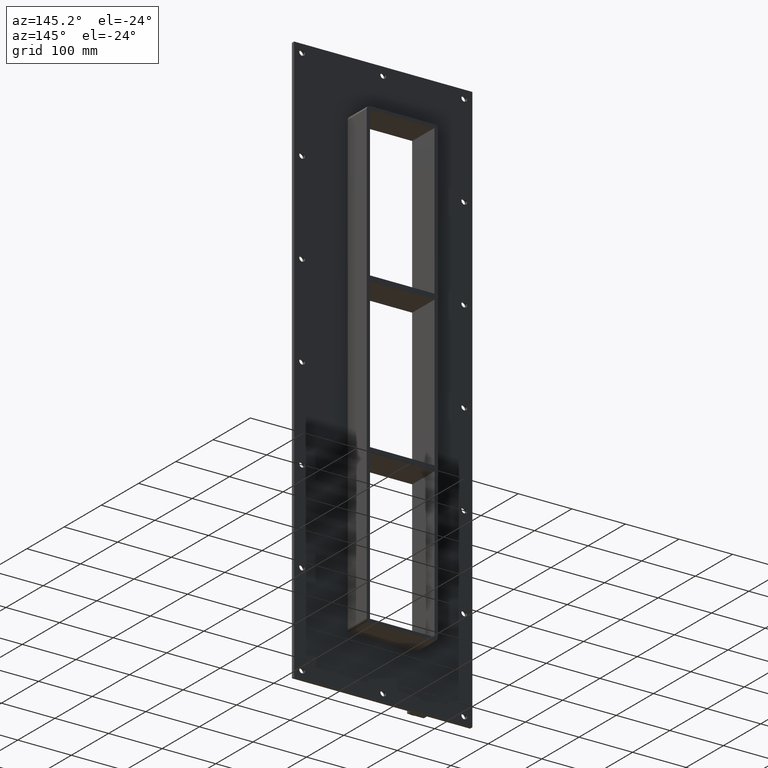
[diagram: clean part render]
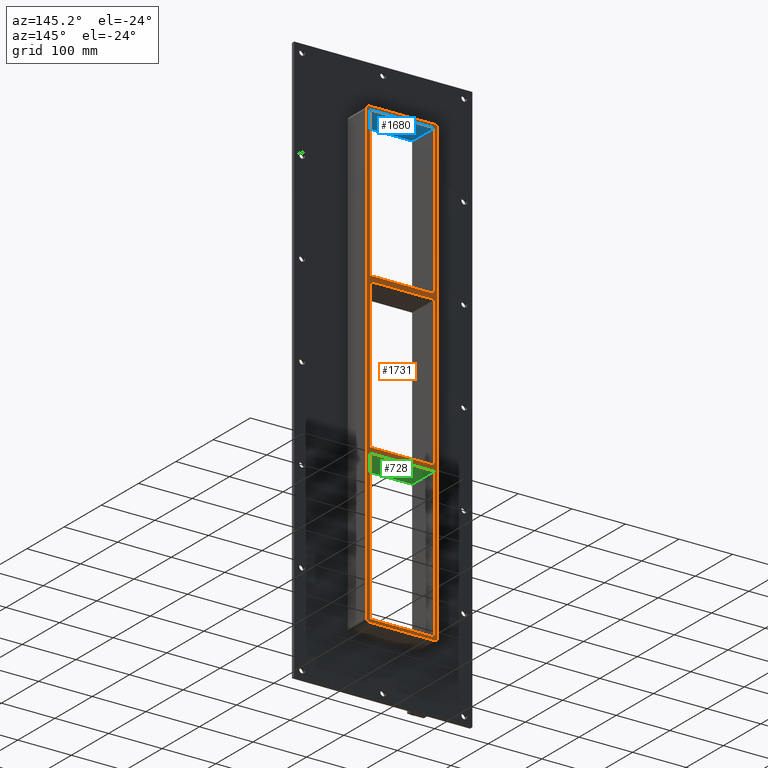
[diagram: same view with three faces highlighted in distinct colors, each labeled with its STEP entity id]
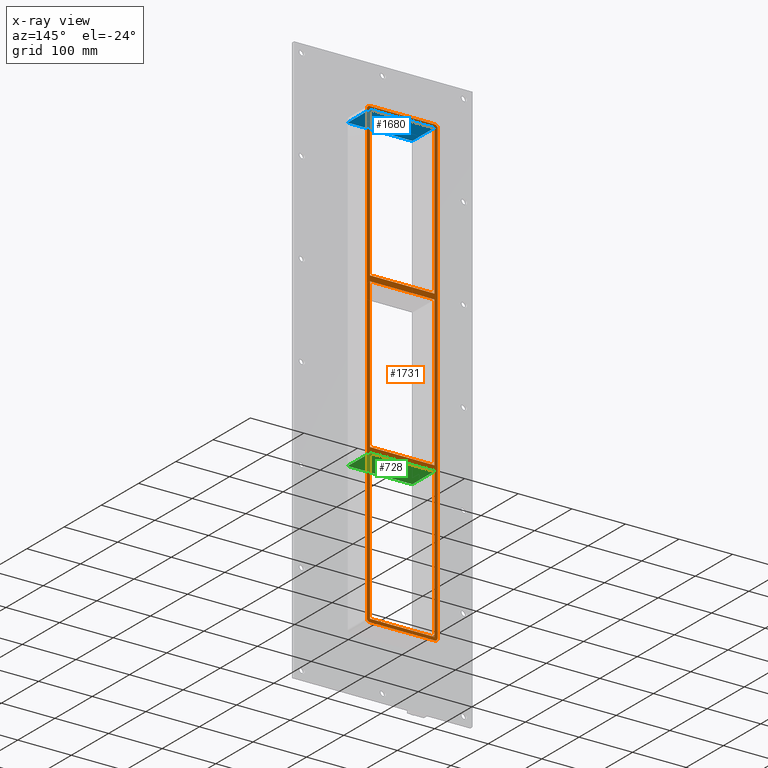
[diagram: x-ray of the same camera — body ghosted, the three highlighted faces saturated]
A machine part, auxiliary view with three faces highlighted in distinct colors.
The next image is the same camera in x-ray (body ghosted, the three faces saturated) — at least one of them is partly hidden behind the body in this view.
Their STEP definitions:

[orange] entity #1731 — the highlighted planar face has unit normal (0, 1, 0).
#531=CARTESIAN_POINT('',(-60.249999999997598,57.0,138.99999999998772));
#532=VERTEX_POINT('',#531);
#539=CARTESIAN_POINT('',(60.249999999996362,57.0,138.99999999998906));
#540=VERTEX_POINT('',#539);
#541=CARTESIAN_POINT('',(60.249999999996362,57.0,138.99999999998906));
#542=DIRECTION('',(-1.0,0.0,0.0));
#543=VECTOR('',#542,120.49999999999397);
#544=LINE('',#541,#543);
#545=EDGE_CURVE('',#540,#532,#544,.T.);
#571=CARTESIAN_POINT('',(60.249999999999218,57.0,148.99999999999909));
#572=VERTEX_POINT('',#571);
#579=CARTESIAN_POINT('',(-60.249999999997605,57.0,148.99999999999909));
#580=VERTEX_POINT('',#579);
#581=CARTESIAN_POINT('',(-60.249999999997605,57.0,148.99999999999909));
#582=DIRECTION('',(1.0,0.0,0.0));
#583=VECTOR('',#582,120.49999999999683);
#584=LINE('',#581,#583);
#585=EDGE_CURVE('',#580,#572,#584,.T.);
#602=CARTESIAN_POINT('',(-60.25,57.0,426.99999999999994));
#603=VERTEX_POINT('',#602);
#604=CARTESIAN_POINT('',(-60.249999999999993,57.0,426.99999999999994));
#605=DIRECTION('',(0.0,0.0,-1.0));
#606=VECTOR('',#605,278.00000000000085);
#607=LINE('',#604,#606);
#608=EDGE_CURVE('',#603,#580,#607,.T.);
#633=CARTESIAN_POINT('',(60.249999999999218,57.0,-139.00000000000091));
#634=VERTEX_POINT('',#633);
#635=CARTESIAN_POINT('',(60.25,57.0,-139.00000000000091));
#636=DIRECTION('',(0.0,0.0,1.0));
#637=VECTOR('',#636,277.99999999998994);
#638=LINE('',#635,#637);
#639=EDGE_CURVE('',#634,#540,#638,.T.);
#672=CARTESIAN_POINT('',(60.25,57.0,426.99999999999994));
#673=VERTEX_POINT('',#672);
#680=CARTESIAN_POINT('',(60.25,57.0,148.99999999999909));
#681=DIRECTION('',(0.0,0.0,1.0));
#682=VECTOR('',#681,278.00000000000085);
#683=LINE('',#680,#682);
#684=EDGE_CURVE('',#572,#673,#683,.T.);
#704=CARTESIAN_POINT('',(-60.249999999997598,57.0,-149.00000000001228));
#705=VERTEX_POINT('',#704);
#712=CARTESIAN_POINT('',(60.249999999996362,57.0,-149.00000000001094));
#713=VERTEX_POINT('',#712);
#714=CARTESIAN_POINT('',(60.249999999996362,57.0,-149.00000000001094));
#715=DIRECTION('',(-1.0,0.0,0.0));
#716=VECTOR('',#715,120.49999999999397);
#717=LINE('',#714,#716);
#718=EDGE_CURVE('',#713,#705,#717,.T.);
#743=CARTESIAN_POINT('',(-60.249999999997605,57.0,-139.00000000000091));
#744=VERTEX_POINT('',#743);
#745=CARTESIAN_POINT('',(-60.249999999997605,57.0,-139.00000000000091));
#746=DIRECTION('',(1.0,0.0,0.0));
#747=VECTOR('',#746,120.49999999999683);
#748=LINE('',#745,#747);
#749=EDGE_CURVE('',#744,#634,#748,.T.);
#773=CARTESIAN_POINT('',(-60.249999999999993,57.0,138.99999999998772));
#774=DIRECTION('',(0.0,0.0,-1.0));
#775=VECTOR('',#774,277.99999999998863);
#776=LINE('',#773,#775);
#777=EDGE_CURVE('',#532,#744,#776,.T.);
#788=CARTESIAN_POINT('',(60.25,57.0,-427.00000000000011));
#789=VERTEX_POINT('',#788);
#790=CARTESIAN_POINT('',(60.25,57.0,-427.00000000000011));
#791=DIRECTION('',(0.0,0.0,1.0));
#792=VECTOR('',#791,277.9999999999892);
#793=LINE('',#790,#792);
#794=EDGE_CURVE('',#789,#713,#793,.T.);
#1211=CARTESIAN_POINT('',(-60.25,57.0,-427.00000000000011));
#1212=VERTEX_POINT('',#1211);
#1219=CARTESIAN_POINT('',(-60.249999999999993,57.0,-149.00000000001228));
#1220=DIRECTION('',(0.0,0.0,-1.0));
#1221=VECTOR('',#1220,277.99999999998784);
#1222=LINE('',#1219,#1221);
#1223=EDGE_CURVE('',#705,#1212,#1222,.T.);
#1266=CARTESIAN_POINT('',(60.25,57.0,-433.00000000000006));
#1267=VERTEX_POINT('',#1266);
#1274=CARTESIAN_POINT('',(66.25,57.0,-426.99999999999994));
#1275=VERTEX_POINT('',#1274);
#1276=CARTESIAN_POINT('',(60.25,57.0,-427.0));
#1277=DIRECTION('',(0.0,-1.0,0.0));
#1278=DIRECTION('',(0.707106781186551,0.0,-0.707106781186544));
#1279=AXIS2_PLACEMENT_3D('',#1276,#1277,#1278);
#1280=CIRCLE('',#1279,6.0);
#1281=EDGE_CURVE('',#1267,#1275,#1280,.T.);
#1322=CARTESIAN_POINT('',(-60.25,57.0,-433.00000000000006));
#1323=VERTEX_POINT('',#1322);
#1330=CARTESIAN_POINT('',(60.25,57.0,-433.00000000000006));
#1331=DIRECTION('',(-1.0,0.0,0.0));
#1332=VECTOR('',#1331,120.5);
#1333=LINE('',#1330,#1332);
#1334=EDGE_CURVE('',#1267,#1323,#1333,.T.);
#1395=CARTESIAN_POINT('',(-66.25,57.0,-427.0));
#1396=VERTEX_POINT('',#1395);
#1403=CARTESIAN_POINT('',(-60.25,57.0,-427.0));
#1404=DIRECTION('',(0.0,-1.0,0.0));
#1405=DIRECTION('',(-0.707106781186551,0.0,-0.707106781186544));
#1406=AXIS2_PLACEMENT_3D('',#1403,#1404,#1405);
#1407=CIRCLE('',#1406,6.0);
#1408=EDGE_CURVE('',#1396,#1323,#1407,.T.);
#1469=CARTESIAN_POINT('',(-66.25,57.0,426.99999999999994));
#1470=VERTEX_POINT('',#1469);
#1477=CARTESIAN_POINT('',(-66.25,57.0,-427.00000000000006));
#1478=DIRECTION('',(0.0,0.0,1.0));
#1479=VECTOR('',#1478,854.0);
#1480=LINE('',#1477,#1479);
#1481=EDGE_CURVE('',#1396,#1470,#1480,.T.);
#1579=CARTESIAN_POINT('',(-60.25,57.0,433.00000000000006));
#1580=VERTEX_POINT('',#1579);
#1587=CARTESIAN_POINT('',(-60.25,57.0,427.0));
#1588=DIRECTION('',(0.0,-1.0,0.0));
#1589=DIRECTION('',(-0.707106781186551,0.0,0.707106781186544));
#1590=AXIS2_PLACEMENT_3D('',#1587,#1588,#1589);
#1591=CIRCLE('',#1590,6.0);
#1592=EDGE_CURVE('',#1580,#1470,#1591,.T.);
#1604=CARTESIAN_POINT('',(60.25,57.0,433.00000000000006));
#1605=VERTEX_POINT('',#1604);
#1612=CARTESIAN_POINT('',(-60.25,57.0,433.00000000000006));
#1613=DIRECTION('',(1.0,0.0,0.0));
#1614=VECTOR('',#1613,120.5);
#1615=LINE('',#1612,#1614);
#1616=EDGE_CURVE('',#1580,#1605,#1615,.T.);
#1628=CARTESIAN_POINT('',(66.25,57.0,427.0));
#1629=VERTEX_POINT('',#1628);
#1636=CARTESIAN_POINT('',(60.25,57.0,427.0));
#1637=DIRECTION('',(0.0,-1.0,0.0));
#1638=DIRECTION('',(0.707106781186551,0.0,0.707106781186544));
#1639=AXIS2_PLACEMENT_3D('',#1636,#1637,#1638);
#1640=CIRCLE('',#1639,6.0);
#1641=EDGE_CURVE('',#1629,#1605,#1640,.T.);
#1654=CARTESIAN_POINT('',(66.25,57.0,427.00000000000006));
#1655=DIRECTION('',(0.0,0.0,-1.0));
#1656=VECTOR('',#1655,854.0);
#1657=LINE('',#1654,#1656);
#1658=EDGE_CURVE('',#1629,#1275,#1657,.T.);
#1670=CARTESIAN_POINT('',(60.25,57.0,427.0));
#1671=DIRECTION('',(-1.0,0.0,0.0));
#1672=VECTOR('',#1671,120.5);
#1673=LINE('',#1670,#1672);
#1674=EDGE_CURVE('',#673,#603,#1673,.T.);
#1689=CARTESIAN_POINT('',(-60.250000000000014,57.0,-427.00000000000011));
#1690=DIRECTION('',(1.0,0.0,0.0));
#1691=VECTOR('',#1690,120.50000000000001);
#1692=LINE('',#1689,#1691);
#1693=EDGE_CURVE('',#1212,#789,#1692,.T.);
#1698=CARTESIAN_POINT('',(0.0,57.0,0.0));
#1699=DIRECTION('',(0.0,1.0,0.0));
#1700=DIRECTION('',(0.0,0.0,1.0));
#1701=AXIS2_PLACEMENT_3D('',#1698,#1699,#1700);
#1702=PLANE('',#1701);
#1703=ORIENTED_EDGE('',*,*,#1408,.F.);
#1704=ORIENTED_EDGE('',*,*,#1481,.T.);
#1705=ORIENTED_EDGE('',*,*,#1592,.F.);
#1706=ORIENTED_EDGE('',*,*,#1616,.T.);
#1707=ORIENTED_EDGE('',*,*,#1641,.F.);
#1708=ORIENTED_EDGE('',*,*,#1658,.T.);
#1709=ORIENTED_EDGE('',*,*,#1281,.F.);
#1710=ORIENTED_EDGE('',*,*,#1334,.T.);
#1711=EDGE_LOOP('',(#1703,#1704,#1705,#1706,#1707,#1708,#1709,#1710));
#1712=FACE_OUTER_BOUND('',#1711,.T.);
#1713=ORIENTED_EDGE('',*,*,#777,.T.);
#1714=ORIENTED_EDGE('',*,*,#749,.T.);
#1715=ORIENTED_EDGE('',*,*,#639,.T.);
#1716=ORIENTED_EDGE('',*,*,#545,.T.);
#1717=EDGE_LOOP('',(#1713,#1714,#1715,#1716));
#1718=FACE_BOUND('',#1717,.T.);
#1719=ORIENTED_EDGE('',*,*,#1223,.T.);
#1720=ORIENTED_EDGE('',*,*,#1693,.T.);
#1721=ORIENTED_EDGE('',*,*,#794,.T.);
#1722=ORIENTED_EDGE('',*,*,#718,.T.);
#1723=EDGE_LOOP('',(#1719,#1720,#1721,#1722));
#1724=FACE_BOUND('',#1723,.T.);
#1725=ORIENTED_EDGE('',*,*,#585,.T.);
#1726=ORIENTED_EDGE('',*,*,#684,.T.);
#1727=ORIENTED_EDGE('',*,*,#1674,.T.);
#1728=ORIENTED_EDGE('',*,*,#608,.T.);
#1729=EDGE_LOOP('',(#1725,#1726,#1727,#1728));
#1730=FACE_BOUND('',#1729,.T.);
#1731=ADVANCED_FACE('',(#1712,#1718,#1724,#1730),#1702,.T.);

[blue] entity #1680 — the highlighted planar face has unit normal (0, 0, 1).
#602=CARTESIAN_POINT('',(-60.25,57.0,426.99999999999994));
#603=VERTEX_POINT('',#602);
#610=CARTESIAN_POINT('',(-60.25,-3.0,426.99999999999994));
#611=VERTEX_POINT('',#610);
#612=CARTESIAN_POINT('',(-60.249999999999993,-3.0,427.0));
#613=DIRECTION('',(0.0,1.0,0.0));
#614=VECTOR('',#613,60.0);
#615=LINE('',#612,#614);
#616=EDGE_CURVE('',#611,#603,#615,.T.);
#664=CARTESIAN_POINT('',(60.25,-3.0,426.99999999999994));
#665=VERTEX_POINT('',#664);
#672=CARTESIAN_POINT('',(60.25,57.0,426.99999999999994));
#673=VERTEX_POINT('',#672);
#674=CARTESIAN_POINT('',(60.25,-3.0,427.0));
#675=DIRECTION('',(0.0,1.0,0.0));
#676=VECTOR('',#675,60.0);
#677=LINE('',#674,#676);
#678=EDGE_CURVE('',#665,#673,#677,.T.);
#1545=CARTESIAN_POINT('',(-60.25,-3.0,427.0));
#1546=DIRECTION('',(1.0,0.0,0.0));
#1547=VECTOR('',#1546,120.5);
#1548=LINE('',#1545,#1547);
#1549=EDGE_CURVE('',#611,#665,#1548,.T.);
#1664=CARTESIAN_POINT('',(-60.249999999999993,0.0,427.0));
#1665=DIRECTION('',(0.0,0.0,1.0));
#1666=DIRECTION('',(1.0,0.0,0.0));
#1667=AXIS2_PLACEMENT_3D('',#1664,#1665,#1666);
#1668=PLANE('',#1667);
#1669=ORIENTED_EDGE('',*,*,#616,.T.);
#1670=CARTESIAN_POINT('',(60.25,57.0,427.0));
#1671=DIRECTION('',(-1.0,0.0,0.0));
#1672=VECTOR('',#1671,120.5);
#1673=LINE('',#1670,#1672);
#1674=EDGE_CURVE('',#673,#603,#1673,.T.);
#1675=ORIENTED_EDGE('',*,*,#1674,.F.);
#1676=ORIENTED_EDGE('',*,*,#678,.F.);
#1677=ORIENTED_EDGE('',*,*,#1549,.F.);
#1678=EDGE_LOOP('',(#1669,#1675,#1676,#1677));
#1679=FACE_OUTER_BOUND('',#1678,.T.);
#1680=ADVANCED_FACE('',(#1679),#1668,.F.);

[green] entity #728 — the highlighted planar face has unit normal (0, 0, -1).
#689=CARTESIAN_POINT('',(60.249999999996362,-3.0,-149.00000000001094));
#690=DIRECTION('',(0.0,0.0,-1.0));
#691=DIRECTION('',(-1.0,0.0,0.0));
#692=AXIS2_PLACEMENT_3D('',#689,#690,#691);
#693=PLANE('',#692);
#694=CARTESIAN_POINT('',(60.249999999996362,-3.0,-149.00000000001094));
#695=VERTEX_POINT('',#694);
#696=CARTESIAN_POINT('',(-60.249999999997598,-3.0,-149.00000000001228));
#697=VERTEX_POINT('',#696);
#698=CARTESIAN_POINT('',(60.249999999996362,-3.0,-149.00000000001094));
#699=DIRECTION('',(-1.0,0.0,0.0));
#700=VECTOR('',#699,120.49999999999397);
#701=LINE('',#698,#700);
#702=EDGE_CURVE('',#695,#697,#701,.T.);
#703=ORIENTED_EDGE('',*,*,#702,.T.);
#704=CARTESIAN_POINT('',(-60.249999999997598,57.0,-149.00000000001228));
#705=VERTEX_POINT('',#704);
#706=CARTESIAN_POINT('',(-60.249999999999993,57.000000000000007,-149.00000000001225));
#707=DIRECTION('',(0.0,-1.0,0.0));
#708=VECTOR('',#707,60.000000000000007);
#709=LINE('',#706,#708);
#710=EDGE_CURVE('',#705,#697,#709,.T.);
#711=ORIENTED_EDGE('',*,*,#710,.F.);
#712=CARTESIAN_POINT('',(60.249999999996362,57.0,-149.00000000001094));
#713=VERTEX_POINT('',#712);
#714=CARTESIAN_POINT('',(60.249999999996362,57.0,-149.00000000001094));
#715=DIRECTION('',(-1.0,0.0,0.0));
#716=VECTOR('',#715,120.49999999999397);
#717=LINE('',#714,#716);
#718=EDGE_CURVE('',#713,#705,#717,.T.);
#719=ORIENTED_EDGE('',*,*,#718,.F.);
#720=CARTESIAN_POINT('',(60.25,-3.0,-149.00000000001091));
#721=DIRECTION('',(0.0,1.0,0.0));
#722=VECTOR('',#721,60.000000000000007);
#723=LINE('',#720,#722);
#724=EDGE_CURVE('',#695,#713,#723,.T.);
#725=ORIENTED_EDGE('',*,*,#724,.F.);
#726=EDGE_LOOP('',(#703,#711,#719,#725));
#727=FACE_OUTER_BOUND('',#726,.T.);
#728=ADVANCED_FACE('',(#727),#693,.T.);